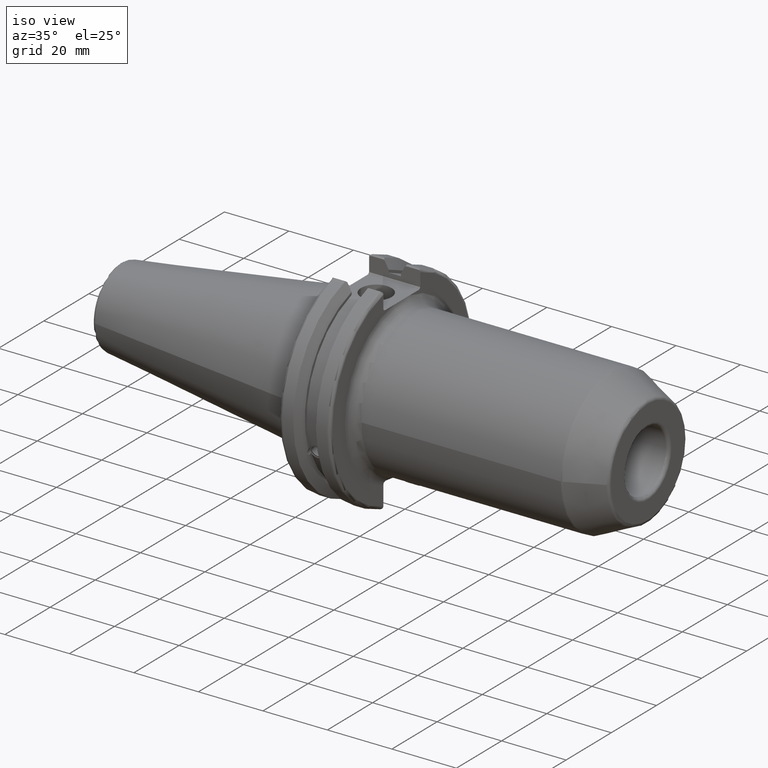
[diagram: clean part render]
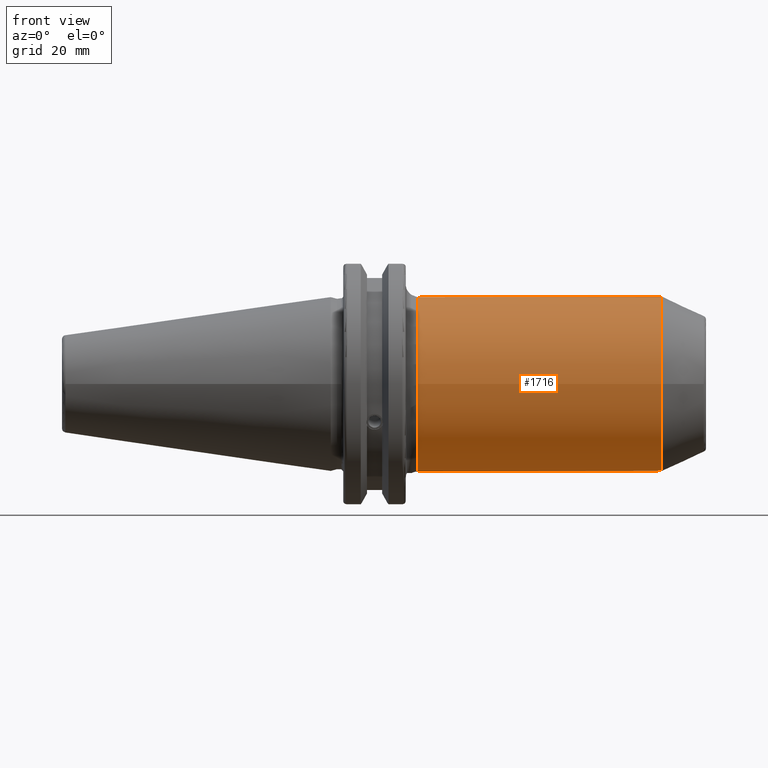
[diagram: tour spotlight — one face highlighted and labeled with its STEP entity id]
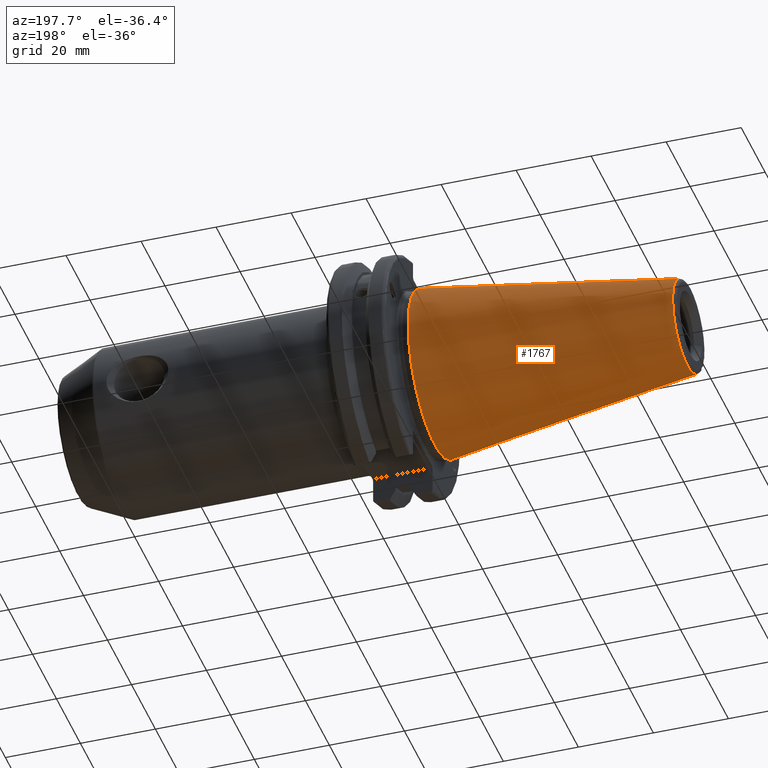
[diagram: tour spotlight — one face highlighted and labeled with its STEP entity id]
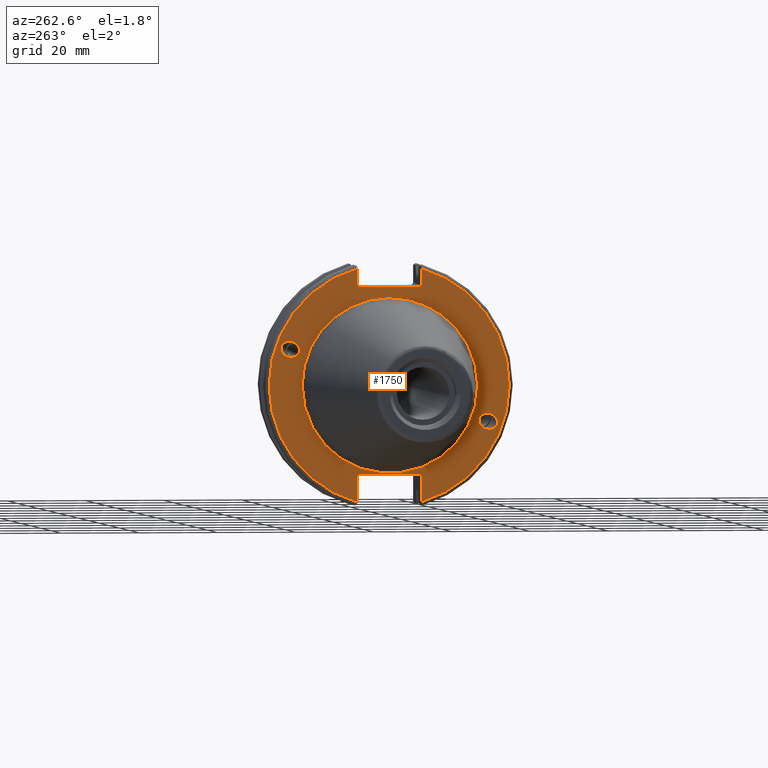
[diagram: tour spotlight — one face highlighted and labeled with its STEP entity id]
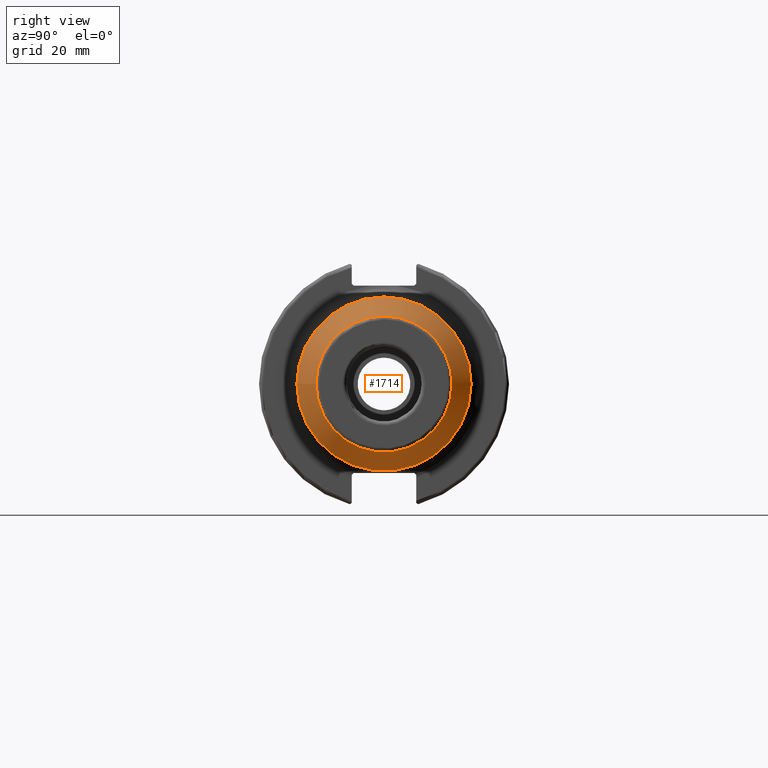
[diagram: tour spotlight — one face highlighted and labeled with its STEP entity id]
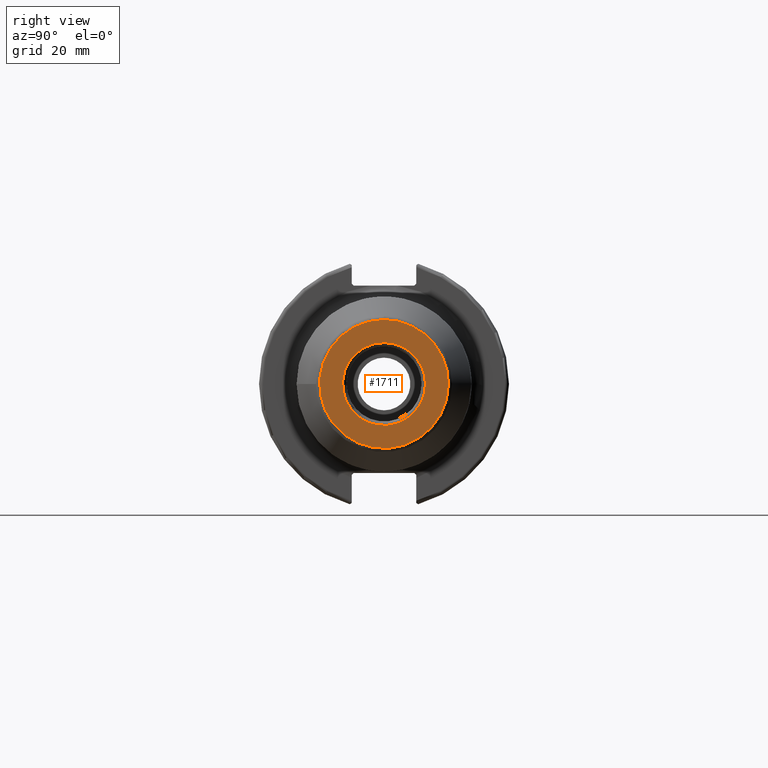
[diagram: tour spotlight — one face highlighted and labeled with its STEP entity id]
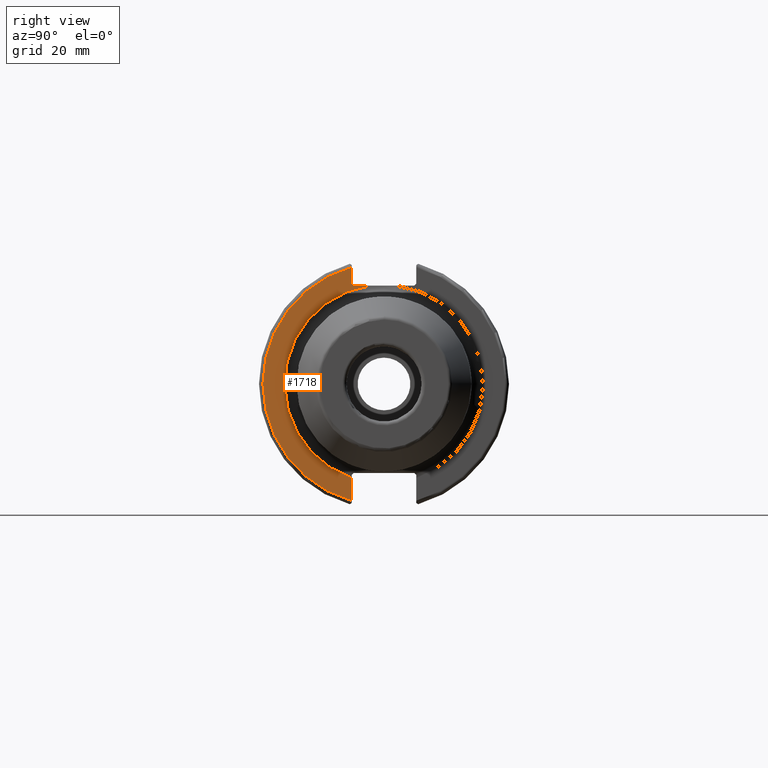
[diagram: tour spotlight — one face highlighted and labeled with its STEP entity id]
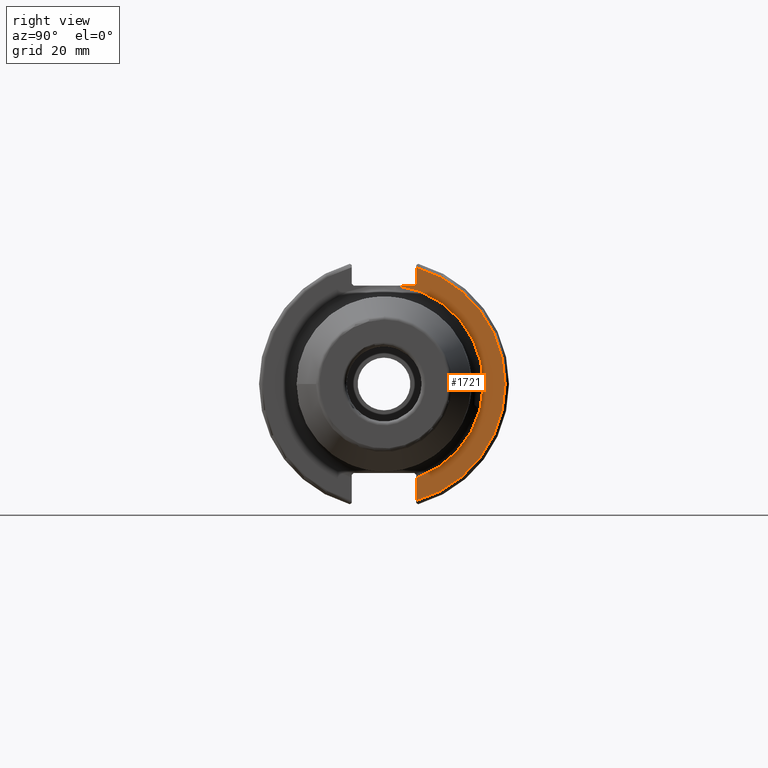
[diagram: tour spotlight — one face highlighted and labeled with its STEP entity id]
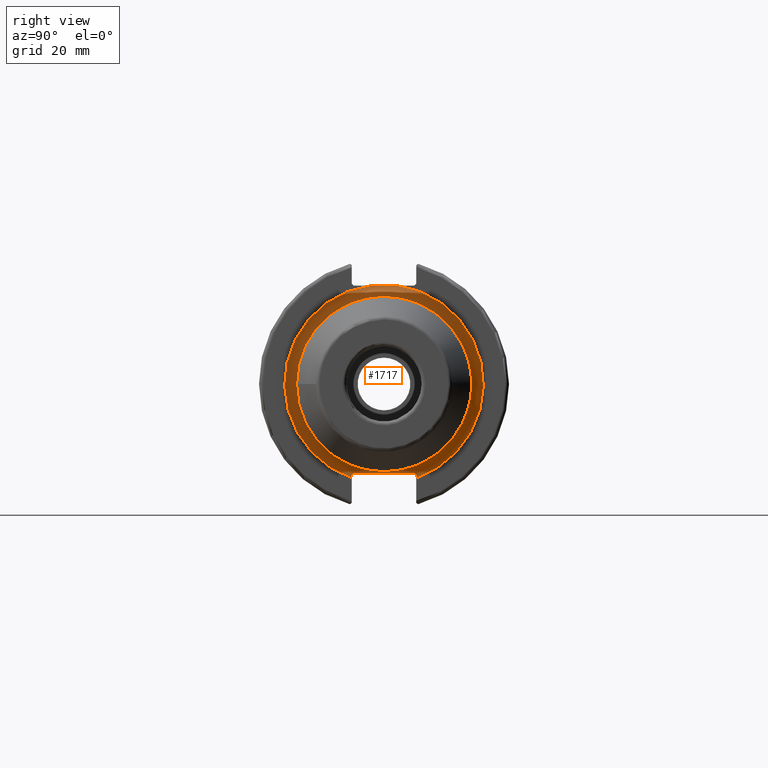
[diagram: tour spotlight — one face highlighted and labeled with its STEP entity id]
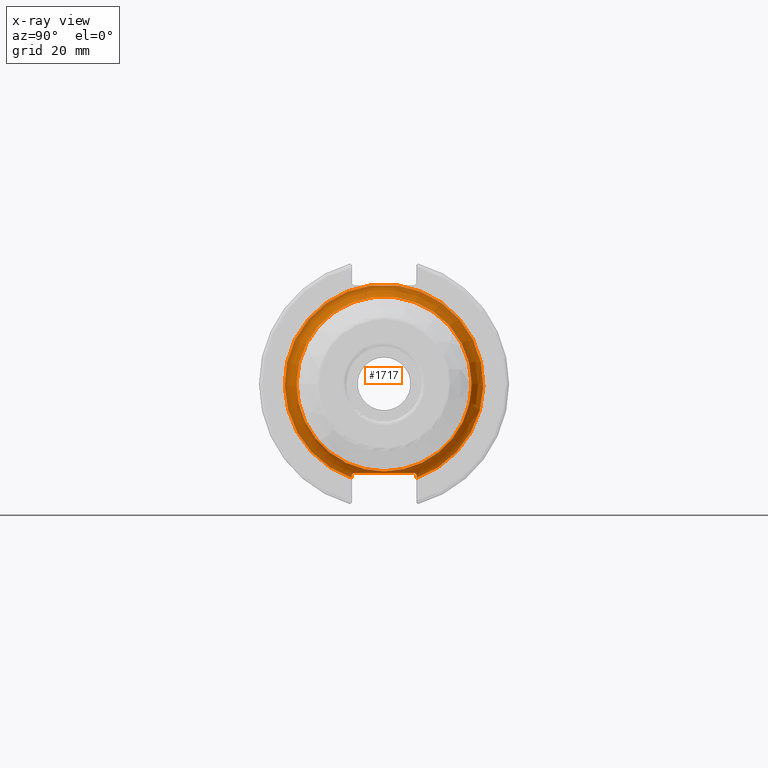
[diagram: x-ray of the same camera — body ghosted, this tour face saturated]
A machine part: a face-by-face anatomy tour. The part has 89 B-rep faces; the first image is the clean iso view, then the 8 largest visible faces are spotlighted one at a time (largest first), each with its STEP entity span.

Face 1 — front view, entity #1716. In plain terms, the highlighted cylindrical surface (bore or boss wall) has radius 22.225 mm, axis along (1, 0, 0).
Definition (entity closure, byte-faithful):
#74=FACE_BOUND('',#230,.T.);
#137=FACE_OUTER_BOUND('',#229,.T.);
#229=EDGE_LOOP('',(#1186,#1187,#1188,#1189,#1190,#1191,#1192,#1193));
#230=EDGE_LOOP('',(#1194,#1195));
#326=B_SPLINE_CURVE_WITH_KNOTS('',3,(#2624,#2625,#2626,#2627,#2628,#2629,
#2630,#2631,#2632,#2633,#2634,#2635,#2636,#2637,#2638,#2639,#2640,#2641,
#2642,#2643,#2644,#2645,#2646,#2647,#2648,#2649),.UNSPECIFIED.,.F.,.F.,
(4,2,2,2,2,2,2,2,2,2,2,2,4),(0.,0.28570665169372,0.571413303387441,0.868206131903912,
1.16499896042038,1.46179178893685,1.75858461745333,2.04429126914705,2.32999792084077,
2.61570457253449,2.90141122422821,3.19820405274468,3.49499688126115),
 .UNSPECIFIED.);
#327=B_SPLINE_CURVE_WITH_KNOTS('',3,(#2650,#2651,#2652,#2653,#2654,#2655,
#2656,#2657,#2658,#2659),.UNSPECIFIED.,.F.,.F.,(4,2,2,2,4),(3.49499688126115,
3.79178970977762,4.08858253829409,4.37428918998781,4.65999584168153),
 .UNSPECIFIED.);
#369=LINE('',#2709,#459);
#459=VECTOR('',#2110,22.225);
#567=CIRCLE('',#1847,22.225);
#568=CIRCLE('',#1848,22.225);
#569=CIRCLE('',#1849,22.225);
#570=CIRCLE('',#1851,22.225);
#571=CIRCLE('',#1852,22.225);
#572=CIRCLE('',#1853,22.225);
#662=VERTEX_POINT('',#2621);
#663=VERTEX_POINT('',#2623);
#679=VERTEX_POINT('',#2700);
#680=VERTEX_POINT('',#2702);
#681=VERTEX_POINT('',#2704);
#682=VERTEX_POINT('',#2708);
#683=VERTEX_POINT('',#2710);
#684=VERTEX_POINT('',#2712);
#859=EDGE_CURVE('',#663,#662,#326,.T.);
#860=EDGE_CURVE('',#662,#663,#327,.T.);
#881=EDGE_CURVE('',#679,#680,#567,.T.);
#882=EDGE_CURVE('',#680,#681,#568,.T.);
#883=EDGE_CURVE('',#681,#679,#569,.T.);
#884=EDGE_CURVE('',#680,#682,#369,.T.);
#885=EDGE_CURVE('',#683,#682,#570,.T.);
#886=EDGE_CURVE('',#684,#683,#571,.T.);
#887=EDGE_CURVE('',#682,#684,#572,.T.);
#1186=ORIENTED_EDGE('',*,*,#883,.F.);
#1187=ORIENTED_EDGE('',*,*,#882,.F.);
#1188=ORIENTED_EDGE('',*,*,#884,.T.);
#1189=ORIENTED_EDGE('',*,*,#885,.F.);
#1190=ORIENTED_EDGE('',*,*,#886,.F.);
#1191=ORIENTED_EDGE('',*,*,#887,.F.);
#1192=ORIENTED_EDGE('',*,*,#884,.F.);
#1193=ORIENTED_EDGE('',*,*,#881,.F.);
#1194=ORIENTED_EDGE('',*,*,#859,.T.);
#1195=ORIENTED_EDGE('',*,*,#860,.T.);
#1681=CYLINDRICAL_SURFACE('',#1850,22.225);
#1716=ADVANCED_FACE('',(#137,#74),#1681,.T.);
#1847=AXIS2_PLACEMENT_3D('',#2703,#2102,#2103);
#1848=AXIS2_PLACEMENT_3D('',#2705,#2104,#2105);
#1849=AXIS2_PLACEMENT_3D('',#2706,#2106,#2107);
#1850=AXIS2_PLACEMENT_3D('',#2707,#2108,#2109);
#1851=AXIS2_PLACEMENT_3D('',#2711,#2111,#2112);
#1852=AXIS2_PLACEMENT_3D('',#2713,#2113,#2114);
#1853=AXIS2_PLACEMENT_3D('',#2714,#2115,#2116);
#2102=DIRECTION('center_axis',(1.,0.,0.));
#2103=DIRECTION('ref_axis',(0.,-1.,1.83697019872103E-16));
#2104=DIRECTION('center_axis',(1.,0.,0.));
#2105=DIRECTION('ref_axis',(0.,-1.,1.83697019872103E-16));
#2106=DIRECTION('center_axis',(1.,0.,0.));
#2107=DIRECTION('ref_axis',(0.,-1.,1.83697019872103E-16));
#2108=DIRECTION('center_axis',(1.,0.,0.));
#2109=DIRECTION('ref_axis',(0.,1.,0.));
#2110=DIRECTION('',(-1.,0.,0.));
#2111=DIRECTION('center_axis',(-1.,0.,0.));
#2112=DIRECTION('ref_axis',(0.,-1.,-1.22464679914735E-16));
#2113=DIRECTION('center_axis',(-1.,0.,0.));
#2114=DIRECTION('ref_axis',(0.,-1.,-1.22464679914735E-16));
#2115=DIRECTION('center_axis',(-1.,0.,0.));
#2116=DIRECTION('ref_axis',(0.,-1.,-1.22464679914735E-16));
#2621=CARTESIAN_POINT('',(63.95,22.225,1.01033360929656E-15));
#2623=CARTESIAN_POINT('',(72.2,21.0640818382873,-7.08908183828728));
#2624=CARTESIAN_POINT('Ctrl Pts',(72.2,21.0640818382873,-7.08908183828728));
#2625=CARTESIAN_POINT('Ctrl Pts',(73.1523555056457,21.0640818382873,-7.08908183828728));
#2626=CARTESIAN_POINT('Ctrl Pts',(74.1774472068294,21.1172822160691,-6.93706939600735));
#2627=CARTESIAN_POINT('Ctrl Pts',(76.105103114522,21.3165094684298,-6.29833098617762));
#2628=CARTESIAN_POINT('Ctrl Pts',(77.0079683762494,21.4600099475821,-5.81172811466357));
#2629=CARTESIAN_POINT('Ctrl Pts',(78.5191535780537,21.7469359800464,-4.6267996553044));
#2630=CARTESIAN_POINT('Ctrl Pts',(79.2252339768787,21.9114714688491,-3.83129789219669));
#2631=CARTESIAN_POINT('Ctrl Pts',(80.1915599293766,22.1526075235609,-2.01331009728329));
#2632=CARTESIAN_POINT('Ctrl Pts',(80.45,22.225,-0.989309428388238));
#2633=CARTESIAN_POINT('Ctrl Pts',(80.45,22.225,0.989309428388238));
#2634=CARTESIAN_POINT('Ctrl Pts',(80.1915599293766,22.1526075235609,2.01331009728329));
#2635=CARTESIAN_POINT('Ctrl Pts',(79.2252339768787,21.9114714688491,3.83129789219669));
#2636=CARTESIAN_POINT('Ctrl Pts',(78.5191535780537,21.7469359800464,4.6267996553044));
#2637=CARTESIAN_POINT('Ctrl Pts',(77.0079683762494,21.4600099475821,5.81172811466357));
#2638=CARTESIAN_POINT('Ctrl Pts',(76.105103114522,21.3165094684298,6.29833098617761));
#2639=CARTESIAN_POINT('Ctrl Pts',(74.1774472068294,21.1172822160691,6.93706939600735));
#2640=CARTESIAN_POINT('Ctrl Pts',(73.1523555056457,21.0640818382873,7.08908183828729));
#2641=CARTESIAN_POINT('Ctrl Pts',(71.2476444943543,21.0640818382873,7.08908183828729));
#2642=CARTESIAN_POINT('Ctrl Pts',(70.2225527931706,21.1172822160691,6.93706939600735));
#2643=CARTESIAN_POINT('Ctrl Pts',(68.294896885478,21.3165094684298,6.29833098617762));
#2644=CARTESIAN_POINT('Ctrl Pts',(67.3920316237506,21.4600099475821,5.81172811466357));
#2645=CARTESIAN_POINT('Ctrl Pts',(65.8808464219463,21.7469359800464,4.6267996553044));
#2646=CARTESIAN_POINT('Ctrl Pts',(65.1747660231213,21.9114714688491,3.83129789219669));
#2647=CARTESIAN_POINT('Ctrl Pts',(64.2084400706234,22.1526075235609,2.01331009728329));
#2648=CARTESIAN_POINT('Ctrl Pts',(63.95,22.225,0.98930942838824));
#2649=CARTESIAN_POINT('Ctrl Pts',(63.95,22.225,1.66533453693773E-15));
#2650=CARTESIAN_POINT('Ctrl Pts',(63.95,22.225,1.11022302462516E-15));
#2651=CARTESIAN_POINT('Ctrl Pts',(63.95,22.225,-0.989309428388237));
#2652=CARTESIAN_POINT('Ctrl Pts',(64.2084400706234,22.1526075235609,-2.01331009728329));
#2653=CARTESIAN_POINT('Ctrl Pts',(65.1747660231213,21.9114714688491,-3.83129789219669));
#2654=CARTESIAN_POINT('Ctrl Pts',(65.8808464219463,21.7469359800464,-4.6267996553044));
#2655=CARTESIAN_POINT('Ctrl Pts',(67.3920316237506,21.4600099475821,-5.81172811466357));
#2656=CARTESIAN_POINT('Ctrl Pts',(68.294896885478,21.3165094684298,-6.29833098617762));
#2657=CARTESIAN_POINT('Ctrl Pts',(70.2225527931706,21.1172822160691,-6.93706939600735));
#2658=CARTESIAN_POINT('Ctrl Pts',(71.2476444943543,21.0640818382873,-7.08908183828728));
#2659=CARTESIAN_POINT('Ctrl Pts',(72.2,21.0640818382873,-7.08908183828728));
#2700=CARTESIAN_POINT('',(83.8732566776946,-2.72177751110499E-15,22.225));
#2702=CARTESIAN_POINT('',(83.8732566776946,-22.225,-2.72177751110499E-15));
#2703=CARTESIAN_POINT('Origin',(83.8732566776946,0.,0.));
#2704=CARTESIAN_POINT('',(83.8732566776946,22.225,-1.3608887555525E-15));
#2705=CARTESIAN_POINT('Origin',(83.8732566776946,0.,0.));
#2706=CARTESIAN_POINT('Origin',(83.8732566776946,0.,0.));
#2707=CARTESIAN_POINT('Origin',(51.5724756701688,0.,0.));
#2708=CARTESIAN_POINT('',(22.05,-22.225,-2.72177751110499E-15));
#2709=CARTESIAN_POINT('',(51.5724756701688,-22.225,-2.72177751110499E-15));
#2710=CARTESIAN_POINT('',(22.05,-2.72177751110499E-15,-22.225));
#2711=CARTESIAN_POINT('Origin',(22.05,0.,0.));
#2712=CARTESIAN_POINT('',(22.05,22.225,0.));
#2713=CARTESIAN_POINT('Origin',(22.05,0.,0.));
#2714=CARTESIAN_POINT('Origin',(22.05,0.,0.));

Face 2 — auxiliary view, entity #1767. In plain terms, the highlighted conical surface has half-angle 8.297 deg.
Definition (entity closure, byte-faithful):
#65=CONICAL_SURFACE('',#1988,17.2484375,0.144812498238939);
#188=FACE_OUTER_BOUND('',#293,.T.);
#293=EDGE_LOOP('',(#1531,#1532,#1533,#1534,#1535,#1536,#1537));
#435=LINE('',#3459,#525);
#525=VECTOR('',#2456,17.2484375);
#631=CIRCLE('',#1979,12.3966635780937);
#632=CIRCLE('',#1980,12.3966635780937);
#636=CIRCLE('',#1984,12.3966635780937);
#639=CIRCLE('',#1989,22.225);
#640=CIRCLE('',#1990,22.225);
#828=VERTEX_POINT('',#3438);
#829=VERTEX_POINT('',#3439);
#830=VERTEX_POINT('',#3441);
#835=VERTEX_POINT('',#3455);
#836=VERTEX_POINT('',#3456);
#1080=EDGE_CURVE('',#828,#829,#631,.T.);
#1081=EDGE_CURVE('',#829,#830,#632,.T.);
#1085=EDGE_CURVE('',#830,#828,#636,.T.);
#1088=EDGE_CURVE('',#835,#836,#639,.T.);
#1089=EDGE_CURVE('',#836,#835,#640,.T.);
#1090=EDGE_CURVE('',#836,#829,#435,.T.);
#1531=ORIENTED_EDGE('',*,*,#1088,.F.);
#1532=ORIENTED_EDGE('',*,*,#1089,.F.);
#1533=ORIENTED_EDGE('',*,*,#1090,.T.);
#1534=ORIENTED_EDGE('',*,*,#1080,.F.);
#1535=ORIENTED_EDGE('',*,*,#1085,.F.);
#1536=ORIENTED_EDGE('',*,*,#1081,.F.);
#1537=ORIENTED_EDGE('',*,*,#1090,.F.);
#1767=ADVANCED_FACE('',(#188),#65,.T.);
#1979=AXIS2_PLACEMENT_3D('',#3440,#2432,#2433);
#1980=AXIS2_PLACEMENT_3D('',#3442,#2434,#2435);
#1984=AXIS2_PLACEMENT_3D('',#3448,#2442,#2443);
#1988=AXIS2_PLACEMENT_3D('',#3454,#2450,#2451);
#1989=AXIS2_PLACEMENT_3D('',#3457,#2452,#2453);
#1990=AXIS2_PLACEMENT_3D('',#3458,#2454,#2455);
#2432=DIRECTION('center_axis',(-1.,0.,0.));
#2433=DIRECTION('ref_axis',(0.,-1.,3.06161699786838E-17));
#2434=DIRECTION('center_axis',(-1.,0.,0.));
#2435=DIRECTION('ref_axis',(0.,-1.,3.06161699786838E-17));
#2442=DIRECTION('center_axis',(-1.,0.,0.));
#2443=DIRECTION('ref_axis',(0.,-1.,3.06161699786838E-17));
#2450=DIRECTION('center_axis',(1.,0.,0.));
#2451=DIRECTION('ref_axis',(0.,1.,0.));
#2452=DIRECTION('center_axis',(1.,0.,0.));
#2453=DIRECTION('ref_axis',(0.,0.,-1.));
#2454=DIRECTION('center_axis',(1.,0.,0.));
#2455=DIRECTION('ref_axis',(0.,0.,-1.));
#2456=DIRECTION('',(-0.989532981063282,0.144306893071729,1.76724974695192E-17));
#3438=CARTESIAN_POINT('',(-67.3943068930717,12.3966635780937,-3.79538359275475E-15));
#3439=CARTESIAN_POINT('',(-67.3943068930718,-12.3966635780937,-1.5181534371019E-15));
#3440=CARTESIAN_POINT('Origin',(-67.3943068930717,0.,-1.89769179637738E-15));
#3441=CARTESIAN_POINT('',(-67.3943068930717,-1.5181534371019E-15,12.3966635780937));
#3442=CARTESIAN_POINT('Origin',(-67.3943068930717,0.,-1.89769179637738E-15));
#3448=CARTESIAN_POINT('Origin',(-67.3943068930717,0.,-1.89769179637738E-15));
#3454=CARTESIAN_POINT('Origin',(-34.125,0.,0.));
#3455=CARTESIAN_POINT('',(0.,22.225,0.));
#3456=CARTESIAN_POINT('',(0.,-22.225,-2.72177751110499E-15));
#3457=CARTESIAN_POINT('Origin',(0.,0.,0.));
#3458=CARTESIAN_POINT('Origin',(0.,0.,0.));
#3459=CARTESIAN_POINT('',(-34.125,-17.2484375,-2.11232437746682E-15));

Face 3 — auxiliary view, entity #1750. In plain terms, the highlighted planar face has unit normal (-1, 0, 0).
Definition (entity closure, byte-faithful):
#39=ELLIPSE('',#1895,2.44154917752291,2.);
#48=ELLIPSE('',#1943,2.44154917752291,2.);
#82=FACE_BOUND('',#272,.T.);
#83=FACE_BOUND('',#273,.T.);
#84=FACE_BOUND('',#274,.T.);
#102=PLANE('',#1954);
#171=FACE_OUTER_BOUND('',#271,.T.);
#271=EDGE_LOOP('',(#1412,#1413,#1414,#1415,#1416,#1417,#1418,#1419,#1420,
#1421,#1422,#1423));
#272=EDGE_LOOP('',(#1424));
#273=EDGE_LOOP('',(#1425));
#274=EDGE_LOOP('',(#1426,#1427));
#408=LINE('',#3222,#498);
#409=LINE('',#3224,#499);
#410=LINE('',#3226,#500);
#411=LINE('',#3228,#501);
#412=LINE('',#3230,#502);
#413=LINE('',#3234,#503);
#414=LINE('',#3236,#504);
#415=LINE('',#3238,#505);
#416=LINE('',#3240,#506);
#417=LINE('',#3241,#507);
#498=VECTOR('',#2359,10.);
#499=VECTOR('',#2360,10.);
#500=VECTOR('',#2361,10.);
#501=VECTOR('',#2362,10.);
#502=VECTOR('',#2363,10.);
#503=VECTOR('',#2366,10.);
#504=VECTOR('',#2367,10.);
#505=VECTOR('',#2368,10.);
#506=VECTOR('',#2369,10.);
#507=VECTOR('',#2370,10.);
#618=CIRCLE('',#1950,22.3);
#619=CIRCLE('',#1951,22.3);
#622=CIRCLE('',#1955,30.75);
#623=CIRCLE('',#1956,30.75);
#734=VERTEX_POINT('',#2965);
#781=VERTEX_POINT('',#3196);
#786=VERTEX_POINT('',#3209);
#787=VERTEX_POINT('',#3211);
#789=VERTEX_POINT('',#3218);
#790=VERTEX_POINT('',#3219);
#791=VERTEX_POINT('',#3221);
#792=VERTEX_POINT('',#3223);
#793=VERTEX_POINT('',#3225);
#794=VERTEX_POINT('',#3227);
#795=VERTEX_POINT('',#3229);
#796=VERTEX_POINT('',#3231);
#797=VERTEX_POINT('',#3233);
#798=VERTEX_POINT('',#3235);
#799=VERTEX_POINT('',#3237);
#800=VERTEX_POINT('',#3239);
#949=EDGE_CURVE('',#734,#734,#39,.T.);
#1012=EDGE_CURVE('',#781,#781,#48,.T.);
#1018=EDGE_CURVE('',#786,#787,#618,.T.);
#1019=EDGE_CURVE('',#787,#786,#619,.T.);
#1022=EDGE_CURVE('',#789,#790,#622,.T.);
#1023=EDGE_CURVE('',#789,#791,#408,.T.);
#1024=EDGE_CURVE('',#792,#791,#409,.T.);
#1025=EDGE_CURVE('',#792,#793,#410,.T.);
#1026=EDGE_CURVE('',#794,#793,#411,.T.);
#1027=EDGE_CURVE('',#794,#795,#412,.T.);
#1028=EDGE_CURVE('',#796,#795,#623,.T.);
#1029=EDGE_CURVE('',#796,#797,#413,.T.);
#1030=EDGE_CURVE('',#798,#797,#414,.T.);
#1031=EDGE_CURVE('',#798,#799,#415,.T.);
#1032=EDGE_CURVE('',#800,#799,#416,.T.);
#1033=EDGE_CURVE('',#800,#790,#417,.T.);
#1412=ORIENTED_EDGE('',*,*,#1022,.F.);
#1413=ORIENTED_EDGE('',*,*,#1023,.T.);
#1414=ORIENTED_EDGE('',*,*,#1024,.F.);
#1415=ORIENTED_EDGE('',*,*,#1025,.T.);
#1416=ORIENTED_EDGE('',*,*,#1026,.F.);
#1417=ORIENTED_EDGE('',*,*,#1027,.T.);
#1418=ORIENTED_EDGE('',*,*,#1028,.F.);
#1419=ORIENTED_EDGE('',*,*,#1029,.T.);
#1420=ORIENTED_EDGE('',*,*,#1030,.F.);
#1421=ORIENTED_EDGE('',*,*,#1031,.T.);
#1422=ORIENTED_EDGE('',*,*,#1032,.F.);
#1423=ORIENTED_EDGE('',*,*,#1033,.T.);
#1424=ORIENTED_EDGE('',*,*,#949,.T.);
#1425=ORIENTED_EDGE('',*,*,#1012,.T.);
#1426=ORIENTED_EDGE('',*,*,#1019,.F.);
#1427=ORIENTED_EDGE('',*,*,#1018,.F.);
#1750=ADVANCED_FACE('',(#171,#82,#83,#84),#102,.T.);
#1895=AXIS2_PLACEMENT_3D('',#2967,#2219,#2220);
#1943=AXIS2_PLACEMENT_3D('',#3198,#2332,#2333);
#1950=AXIS2_PLACEMENT_3D('',#3212,#2347,#2348);
#1951=AXIS2_PLACEMENT_3D('',#3213,#2349,#2350);
#1954=AXIS2_PLACEMENT_3D('',#3217,#2355,#2356);
#1955=AXIS2_PLACEMENT_3D('',#3220,#2357,#2358);
#1956=AXIS2_PLACEMENT_3D('',#3232,#2364,#2365);
#2219=DIRECTION('center_axis',(1.,0.,0.));
#2220=DIRECTION('ref_axis',(0.,-0.939692620785912,-0.34202014332566));
#2332=DIRECTION('center_axis',(1.,0.,0.));
#2333=DIRECTION('ref_axis',(0.,0.939692620785912,0.34202014332566));
#2347=DIRECTION('center_axis',(-1.,0.,0.));
#2348=DIRECTION('ref_axis',(0.,-1.,1.83697019872103E-16));
#2349=DIRECTION('center_axis',(-1.,0.,0.));
#2350=DIRECTION('ref_axis',(0.,-1.,1.83697019872103E-16));
#2355=DIRECTION('center_axis',(-1.,0.,0.));
#2356=DIRECTION('ref_axis',(0.,0.,1.));
#2357=DIRECTION('center_axis',(1.,0.,0.));
#2358=DIRECTION('ref_axis',(0.,-1.,1.60812264967664E-16));
#2359=DIRECTION('',(0.,0.,-1.));
#2360=DIRECTION('',(0.,-0.70710678118655,0.707106781186545));
#2361=DIRECTION('',(0.,1.,0.));
#2362=DIRECTION('',(0.,-0.707106781186549,-0.707106781186546));
#2363=DIRECTION('',(0.,0.,1.));
#2364=DIRECTION('center_axis',(1.,0.,0.));
#2365=DIRECTION('ref_axis',(0.,1.,1.60812264967664E-16));
#2366=DIRECTION('',(0.,0.,1.));
#2367=DIRECTION('',(0.,0.707106781186549,-0.707106781186546));
#2368=DIRECTION('',(0.,-1.,0.));
#2369=DIRECTION('',(0.,0.707106781186549,0.707106781186546));
#2370=DIRECTION('',(0.,0.,-1.));
#2965=CARTESIAN_POINT('',(3.175,-23.0773950158153,-8.39948487016003));
#2967=CARTESIAN_POINT('Origin',(3.175,-25.3717007612195,-9.23454386979306));
#3196=CARTESIAN_POINT('',(3.175,23.0773950158153,8.39948487016003));
#3198=CARTESIAN_POINT('Origin',(3.175,25.3717007612195,9.23454386979306));
#3209=CARTESIAN_POINT('',(3.175,-2.7309623620986E-15,22.3));
#3211=CARTESIAN_POINT('',(3.175,22.3,-6.8274059052465E-15));
#3212=CARTESIAN_POINT('Origin',(3.175,0.,0.));
#3213=CARTESIAN_POINT('Origin',(3.175,0.,0.));
#3217=CARTESIAN_POINT('Origin',(3.175,31.75,0.));
#3218=CARTESIAN_POINT('',(3.175,-8.18999999999999,29.6392712461019));
#3219=CARTESIAN_POINT('',(3.175,-8.19,-29.6392712461019));
#3220=CARTESIAN_POINT('Origin',(3.175,0.,0.));
#3221=CARTESIAN_POINT('',(3.175,-8.18999999999999,25.5));
#3222=CARTESIAN_POINT('',(3.175,-8.18999999999999,12.5));
#3223=CARTESIAN_POINT('',(3.175,-7.68999999999999,25.));
#3224=CARTESIAN_POINT('',(3.175,8.29500000000007,9.01500000000004));
#3225=CARTESIAN_POINT('',(3.175,7.69,25.));
#3226=CARTESIAN_POINT('',(3.175,15.875,25.));
#3227=CARTESIAN_POINT('',(3.175,8.19,25.5));
#3228=CARTESIAN_POINT('',(3.175,7.58000000000002,24.89));
#3229=CARTESIAN_POINT('',(3.175,8.19,29.6392712461019));
#3230=CARTESIAN_POINT('',(3.175,8.19,12.5));
#3231=CARTESIAN_POINT('',(3.175,8.18999999999999,-29.6392712461019));
#3232=CARTESIAN_POINT('Origin',(3.175,0.,0.));
#3233=CARTESIAN_POINT('',(3.175,8.18999999999999,-23.1));
#3234=CARTESIAN_POINT('',(3.175,8.18999999999999,-11.3));
#3235=CARTESIAN_POINT('',(3.175,7.69,-22.6));
#3236=CARTESIAN_POINT('',(3.175,8.18000000000002,-23.09));
#3237=CARTESIAN_POINT('',(3.175,-7.69,-22.6));
#3238=CARTESIAN_POINT('',(3.175,15.875,-22.6));
#3239=CARTESIAN_POINT('',(3.175,-8.19,-23.1));
#3240=CARTESIAN_POINT('',(3.175,7.69500000000004,-7.21500000000002));
#3241=CARTESIAN_POINT('',(3.175,-8.19,-11.3));

Face 4 — right view, entity #1714. In plain terms, the highlighted conical surface has half-angle 25 deg.
Definition (entity closure, byte-faithful):
#60=CONICAL_SURFACE('',#1841,19.6125,0.436332312998582);
#135=FACE_OUTER_BOUND('',#227,.T.);
#227=EDGE_LOOP('',(#1170,#1171,#1172,#1173,#1174,#1175,#1176,#1177));
#368=LINE('',#2693,#458);
#458=VECTOR('',#2091,19.6125);
#560=CIRCLE('',#1838,17.2692375262292);
#561=CIRCLE('',#1839,17.2692375262292);
#562=CIRCLE('',#1840,17.2692375262292);
#563=CIRCLE('',#1842,22.1313077870367);
#564=CIRCLE('',#1843,22.1313077870367);
#565=CIRCLE('',#1844,22.1313077870367);
#673=VERTEX_POINT('',#2684);
#674=VERTEX_POINT('',#2686);
#675=VERTEX_POINT('',#2688);
#676=VERTEX_POINT('',#2692);
#677=VERTEX_POINT('',#2694);
#678=VERTEX_POINT('',#2696);
#873=EDGE_CURVE('',#673,#674,#560,.T.);
#874=EDGE_CURVE('',#674,#675,#561,.T.);
#875=EDGE_CURVE('',#675,#673,#562,.T.);
#876=EDGE_CURVE('',#674,#676,#368,.T.);
#877=EDGE_CURVE('',#677,#676,#563,.T.);
#878=EDGE_CURVE('',#678,#677,#564,.T.);
#879=EDGE_CURVE('',#676,#678,#565,.T.);
#1170=ORIENTED_EDGE('',*,*,#875,.F.);
#1171=ORIENTED_EDGE('',*,*,#874,.F.);
#1172=ORIENTED_EDGE('',*,*,#876,.T.);
#1173=ORIENTED_EDGE('',*,*,#877,.F.);
#1174=ORIENTED_EDGE('',*,*,#878,.F.);
#1175=ORIENTED_EDGE('',*,*,#879,.F.);
#1176=ORIENTED_EDGE('',*,*,#876,.F.);
#1177=ORIENTED_EDGE('',*,*,#873,.F.);
#1714=ADVANCED_FACE('',(#135),#60,.T.);
#1838=AXIS2_PLACEMENT_3D('',#2687,#2083,#2084);
#1839=AXIS2_PLACEMENT_3D('',#2689,#2085,#2086);
#1840=AXIS2_PLACEMENT_3D('',#2690,#2087,#2088);
#1841=AXIS2_PLACEMENT_3D('',#2691,#2089,#2090);
#1842=AXIS2_PLACEMENT_3D('',#2695,#2092,#2093);
#1843=AXIS2_PLACEMENT_3D('',#2697,#2094,#2095);
#1844=AXIS2_PLACEMENT_3D('',#2698,#2096,#2097);
#2083=DIRECTION('center_axis',(1.,0.,0.));
#2084=DIRECTION('ref_axis',(0.,-1.,3.06161699786838E-17));
#2085=DIRECTION('center_axis',(1.,0.,0.));
#2086=DIRECTION('ref_axis',(0.,-1.,3.06161699786838E-17));
#2087=DIRECTION('center_axis',(1.,0.,0.));
#2088=DIRECTION('ref_axis',(0.,-1.,3.06161699786838E-17));
#2089=DIRECTION('center_axis',(-1.,0.,0.));
#2090=DIRECTION('ref_axis',(0.,1.,0.));
#2091=DIRECTION('',(-0.90630778703665,-0.422618261740699,-5.17558101501965E-17));
#2092=DIRECTION('center_axis',(-1.,0.,0.));
#2093=DIRECTION('ref_axis',(0.,-1.,3.06161699786838E-17));
#2094=DIRECTION('center_axis',(-1.,0.,0.));
#2095=DIRECTION('ref_axis',(0.,-1.,3.06161699786838E-17));
#2096=DIRECTION('center_axis',(-1.,0.,0.));
#2097=DIRECTION('ref_axis',(0.,-1.,3.06161699786838E-17));
#2684=CARTESIAN_POINT('',(94.7226182617407,-2.11487164602119E-15,17.2692375262292));
#2686=CARTESIAN_POINT('',(94.7226182617407,-17.2692375262292,-2.11487164602119E-15));
#2687=CARTESIAN_POINT('Origin',(94.7226182617407,0.,-2.64358955752649E-15));
#2688=CARTESIAN_POINT('',(94.7226182617407,17.2692375262292,-1.05743582301059E-15));
#2689=CARTESIAN_POINT('Origin',(94.7226182617407,0.,-2.64358955752649E-15));
#2690=CARTESIAN_POINT('Origin',(94.7226182617407,0.,-2.64358955752649E-15));
#2691=CARTESIAN_POINT('Origin',(89.6974756701688,0.,0.));
#2692=CARTESIAN_POINT('',(84.2958749394353,-22.1313077870367,-2.71030352423393E-15));
#2693=CARTESIAN_POINT('',(89.6974756701688,-19.6125,-2.40183853482775E-15));
#2694=CARTESIAN_POINT('',(84.2958749394353,22.1313077870367,-6.77575881058483E-15));
#2695=CARTESIAN_POINT('Origin',(84.2958749394353,0.,-3.38787940529242E-15));
#2696=CARTESIAN_POINT('',(84.2958749394353,-2.71030352423393E-15,22.1313077870367));
#2697=CARTESIAN_POINT('Origin',(84.2958749394353,0.,-3.38787940529242E-15));
#2698=CARTESIAN_POINT('Origin',(84.2958749394353,0.,-3.38787940529242E-15));

Face 5 — right view, entity #1711. In plain terms, the highlighted planar face has unit normal (1, 0, 0).
Definition (entity closure, byte-faithful):
#72=FACE_BOUND('',#223,.T.);
#90=PLANE('',#1830);
#132=FACE_OUTER_BOUND('',#222,.T.);
#222=EDGE_LOOP('',(#1150,#1151));
#223=EDGE_LOOP('',(#1152,#1153));
#552=CIRCLE('',#1827,10.525);
#553=CIRCLE('',#1828,10.525);
#555=CIRCLE('',#1831,16.3629297391925);
#556=CIRCLE('',#1832,16.3629297391925);
#667=VERTEX_POINT('',#2666);
#668=VERTEX_POINT('',#2668);
#669=VERTEX_POINT('',#2673);
#670=VERTEX_POINT('',#2674);
#864=EDGE_CURVE('',#667,#668,#552,.T.);
#865=EDGE_CURVE('',#668,#667,#553,.T.);
#867=EDGE_CURVE('',#669,#670,#555,.T.);
#868=EDGE_CURVE('',#670,#669,#556,.T.);
#1150=ORIENTED_EDGE('',*,*,#867,.F.);
#1151=ORIENTED_EDGE('',*,*,#868,.F.);
#1152=ORIENTED_EDGE('',*,*,#865,.F.);
#1153=ORIENTED_EDGE('',*,*,#864,.F.);
#1711=ADVANCED_FACE('',(#132,#72),#90,.T.);
#1827=AXIS2_PLACEMENT_3D('',#2669,#2060,#2061);
#1828=AXIS2_PLACEMENT_3D('',#2670,#2062,#2063);
#1830=AXIS2_PLACEMENT_3D('',#2672,#2066,#2067);
#1831=AXIS2_PLACEMENT_3D('',#2675,#2068,#2069);
#1832=AXIS2_PLACEMENT_3D('',#2676,#2070,#2071);
#2060=DIRECTION('center_axis',(1.,0.,0.));
#2061=DIRECTION('ref_axis',(0.,-1.,1.83697019872103E-16));
#2062=DIRECTION('center_axis',(1.,0.,0.));
#2063=DIRECTION('ref_axis',(0.,-1.,1.83697019872103E-16));
#2066=DIRECTION('center_axis',(1.,0.,0.));
#2067=DIRECTION('ref_axis',(0.,0.,-1.));
#2068=DIRECTION('center_axis',(-1.,0.,0.));
#2069=DIRECTION('ref_axis',(0.,-1.,1.83697019872103E-16));
#2070=DIRECTION('center_axis',(-1.,0.,0.));
#2071=DIRECTION('ref_axis',(0.,-1.,1.83697019872103E-16));
#2666=CARTESIAN_POINT('',(95.3,-1.28894075610259E-15,10.525));
#2668=CARTESIAN_POINT('',(95.3,10.525,-6.44470378051294E-16));
#2669=CARTESIAN_POINT('Origin',(95.3,0.,0.));
#2670=CARTESIAN_POINT('Origin',(95.3,0.,0.));
#2672=CARTESIAN_POINT('Origin',(95.3,9.525,0.));
#2673=CARTESIAN_POINT('',(95.3,16.3629297391925,-5.00970238244378E-15));
#2674=CARTESIAN_POINT('',(95.3,-2.00388095297751E-15,16.3629297391925));
#2675=CARTESIAN_POINT('Origin',(95.3,0.,0.));
#2676=CARTESIAN_POINT('Origin',(95.3,0.,0.));

Face 6 — right view, entity #1718. In plain terms, the highlighted planar face has unit normal (1, 0, 0).
Definition (entity closure, byte-faithful):
#91=PLANE('',#1858);
#139=FACE_OUTER_BOUND('',#232,.T.);
#232=EDGE_LOOP('',(#1210,#1211,#1212,#1213,#1214,#1215));
#370=LINE('',#2776,#460);
#371=LINE('',#2778,#461);
#372=LINE('',#2780,#462);
#373=LINE('',#2783,#463);
#460=VECTOR('',#2127,10.);
#461=VECTOR('',#2128,10.);
#462=VECTOR('',#2129,10.);
#463=VECTOR('',#2132,10.);
#575=CIRCLE('',#1857,25.225);
#576=CIRCLE('',#1859,30.75);
#690=VERTEX_POINT('',#2741);
#691=VERTEX_POINT('',#2752);
#694=VERTEX_POINT('',#2775);
#695=VERTEX_POINT('',#2777);
#696=VERTEX_POINT('',#2779);
#697=VERTEX_POINT('',#2781);
#894=EDGE_CURVE('',#690,#691,#575,.T.);
#898=EDGE_CURVE('',#690,#694,#370,.T.);
#899=EDGE_CURVE('',#695,#694,#371,.T.);
#900=EDGE_CURVE('',#695,#696,#372,.T.);
#901=EDGE_CURVE('',#697,#696,#576,.T.);
#902=EDGE_CURVE('',#697,#691,#373,.T.);
#1210=ORIENTED_EDGE('',*,*,#894,.F.);
#1211=ORIENTED_EDGE('',*,*,#898,.T.);
#1212=ORIENTED_EDGE('',*,*,#899,.F.);
#1213=ORIENTED_EDGE('',*,*,#900,.T.);
#1214=ORIENTED_EDGE('',*,*,#901,.F.);
#1215=ORIENTED_EDGE('',*,*,#902,.T.);
#1718=ADVANCED_FACE('',(#139),#91,.T.);
#1857=AXIS2_PLACEMENT_3D('',#2753,#2123,#2124);
#1858=AXIS2_PLACEMENT_3D('',#2774,#2125,#2126);
#1859=AXIS2_PLACEMENT_3D('',#2782,#2130,#2131);
#2123=DIRECTION('center_axis',(1.,0.,0.));
#2124=DIRECTION('ref_axis',(0.,-1.,-1.22464679914735E-16));
#2125=DIRECTION('center_axis',(1.,0.,0.));
#2126=DIRECTION('ref_axis',(0.,0.,-1.));
#2127=DIRECTION('',(0.,-1.,0.));
#2128=DIRECTION('',(0.,0.70710678118655,-0.707106781186545));
#2129=DIRECTION('',(0.,0.,1.));
#2130=DIRECTION('center_axis',(-1.,0.,0.));
#2131=DIRECTION('ref_axis',(0.,-1.,1.60812264967664E-16));
#2132=DIRECTION('',(0.,0.,1.));
#2741=CARTESIAN_POINT('',(19.05,-3.36164022465224,25.));
#2752=CARTESIAN_POINT('',(19.05,-8.19,-23.858426708398));
#2753=CARTESIAN_POINT('Origin',(19.05,0.,0.));
#2774=CARTESIAN_POINT('Origin',(19.05,0.,0.));
#2775=CARTESIAN_POINT('',(19.05,-7.69,25.));
#2776=CARTESIAN_POINT('',(19.05,0.,25.));
#2777=CARTESIAN_POINT('',(19.05,-8.19,25.5));
#2778=CARTESIAN_POINT('',(19.05,0.357500000000014,16.9525));
#2779=CARTESIAN_POINT('',(19.05,-8.19,29.6392712461019));
#2780=CARTESIAN_POINT('',(19.05,-8.19,12.5));
#2781=CARTESIAN_POINT('',(19.05,-8.19,-29.6392712461019));
#2782=CARTESIAN_POINT('Origin',(19.05,0.,0.));
#2783=CARTESIAN_POINT('',(19.05,-8.19,-11.3));

Face 7 — right view, entity #1721. In plain terms, the highlighted planar face has unit normal (1, 0, 0).
Definition (entity closure, byte-faithful):
#93=PLANE('',#1866);
#142=FACE_OUTER_BOUND('',#236,.T.);
#236=EDGE_LOOP('',(#1226,#1227,#1228,#1229,#1230,#1231));
#375=LINE('',#2797,#465);
#376=LINE('',#2801,#466);
#377=LINE('',#2803,#467);
#378=LINE('',#2804,#468);
#465=VECTOR('',#2148,10.);
#466=VECTOR('',#2151,10.);
#467=VECTOR('',#2152,10.);
#468=VECTOR('',#2153,10.);
#574=CIRCLE('',#1856,25.225);
#581=CIRCLE('',#1867,30.75);
#688=VERTEX_POINT('',#2734);
#689=VERTEX_POINT('',#2739);
#702=VERTEX_POINT('',#2796);
#703=VERTEX_POINT('',#2798);
#704=VERTEX_POINT('',#2800);
#705=VERTEX_POINT('',#2802);
#892=EDGE_CURVE('',#688,#689,#574,.T.);
#908=EDGE_CURVE('',#688,#702,#375,.T.);
#909=EDGE_CURVE('',#703,#702,#581,.T.);
#910=EDGE_CURVE('',#703,#704,#376,.T.);
#911=EDGE_CURVE('',#705,#704,#377,.T.);
#912=EDGE_CURVE('',#705,#689,#378,.T.);
#1226=ORIENTED_EDGE('',*,*,#892,.F.);
#1227=ORIENTED_EDGE('',*,*,#908,.T.);
#1228=ORIENTED_EDGE('',*,*,#909,.F.);
#1229=ORIENTED_EDGE('',*,*,#910,.T.);
#1230=ORIENTED_EDGE('',*,*,#911,.F.);
#1231=ORIENTED_EDGE('',*,*,#912,.T.);
#1721=ADVANCED_FACE('',(#142),#93,.T.);
#1856=AXIS2_PLACEMENT_3D('',#2740,#2121,#2122);
#1866=AXIS2_PLACEMENT_3D('',#2795,#2146,#2147);
#1867=AXIS2_PLACEMENT_3D('',#2799,#2149,#2150);
#2121=DIRECTION('center_axis',(1.,0.,0.));
#2122=DIRECTION('ref_axis',(0.,-1.,-1.22464679914735E-16));
#2146=DIRECTION('center_axis',(1.,0.,0.));
#2147=DIRECTION('ref_axis',(0.,0.,-1.));
#2148=DIRECTION('',(0.,0.,-1.));
#2149=DIRECTION('center_axis',(-1.,0.,0.));
#2150=DIRECTION('ref_axis',(0.,1.,-6.12323399573677E-17));
#2151=DIRECTION('',(0.,0.,-1.));
#2152=DIRECTION('',(0.,0.707106781186549,0.707106781186546));
#2153=DIRECTION('',(0.,-1.,0.));
#2734=CARTESIAN_POINT('',(19.05,8.19,-23.858426708398));
#2739=CARTESIAN_POINT('',(19.05,3.36164022465224,25.));
#2740=CARTESIAN_POINT('Origin',(19.05,0.,0.));
#2795=CARTESIAN_POINT('Origin',(19.05,0.,0.));
#2796=CARTESIAN_POINT('',(19.05,8.19,-29.6392712461019));
#2797=CARTESIAN_POINT('',(19.05,8.19,-11.3));
#2798=CARTESIAN_POINT('',(19.05,8.19,29.6392712461019));
#2799=CARTESIAN_POINT('Origin',(19.05,0.,0.));
#2800=CARTESIAN_POINT('',(19.05,8.19,25.5));
#2801=CARTESIAN_POINT('',(19.05,8.19,12.5));
#2802=CARTESIAN_POINT('',(19.05,7.69,25.));
#2803=CARTESIAN_POINT('',(19.05,-0.35750000000001,16.9525));
#2804=CARTESIAN_POINT('',(19.05,0.,25.));

Face 8 — right view, entity #1717. An x-ray twin of the same camera follows (body ghosted, this face saturated) — the face is partly hidden behind the body. In plain terms, the highlighted toroidal blend (fillet) surface has major radius 25.225 mm and minor (blend) radius 3 mm.
Definition (entity closure, byte-faithful):
#52=TOROIDAL_SURFACE('',#1854,25.225,3.);
#138=FACE_OUTER_BOUND('',#231,.T.);
#231=EDGE_LOOP('',(#1196,#1197,#1198,#1199,#1200,#1201,#1202,#1203,#1204,
#1205,#1206,#1207,#1208,#1209));
#328=B_SPLINE_CURVE_WITH_KNOTS('',3,(#2719,#2720,#2721,#2722,#2723,#2724,
#2725,#2726),.UNSPECIFIED.,.F.,.F.,(4,2,2,4),(3.4629372079082,3.80403504682146,
4.14513288573472,4.1994342690214),.UNSPECIFIED.);
#329=B_SPLINE_CURVE_WITH_KNOTS('',3,(#2728,#2729,#2730,#2731,#2732,#2733),
 .UNSPECIFIED.,.F.,.F.,(4,2,4),(1.2585723520491,1.27784874963873,1.32988983395139),
 .UNSPECIFIED.);
#330=B_SPLINE_CURVE_WITH_KNOTS('',3,(#2735,#2736,#2737,#2738),
 .UNSPECIFIED.,.F.,.F.,(4,4),(1.30150435936223,1.37327271815475),
 .UNSPECIFIED.);
#331=B_SPLINE_CURVE_WITH_KNOTS('',3,(#2742,#2743,#2744,#2745,#2746,#2747,
#2748,#2749,#2750,#2751),.UNSPECIFIED.,.F.,.F.,(4,2,2,2,4),(2.37142831043746,
2.46406338627276,2.68658355511601,2.90910372395925,3.00173879979455),
 .UNSPECIFIED.);
#332=B_SPLINE_CURVE_WITH_KNOTS('',3,(#2755,#2756,#2757,#2758),
 .UNSPECIFIED.,.F.,.F.,(4,4),(0.455824098567071,0.527592456886075),
 .UNSPECIFIED.);
#333=B_SPLINE_CURVE_WITH_KNOTS('',3,(#2760,#2761,#2762,#2763,#2764,#2765),
 .UNSPECIFIED.,.F.,.F.,(4,2,4),(0.539311261680497,0.591352346219919,0.61062874427341),
 .UNSPECIFIED.);
#334=B_SPLINE_CURVE_WITH_KNOTS('',3,(#2766,#2767,#2768,#2769,#2770,#2771,
#2772,#2773),.UNSPECIFIED.,.F.,.F.,(4,2,2,4),(2.72644014720573,2.78074153008168,
3.12183936899494,3.4629372079082),.UNSPECIFIED.);
#570=CIRCLE('',#1851,22.225);
#571=CIRCLE('',#1852,22.225);
#572=CIRCLE('',#1853,22.225);
#573=CIRCLE('',#1855,3.);
#574=CIRCLE('',#1856,25.225);
#575=CIRCLE('',#1857,25.225);
#682=VERTEX_POINT('',#2708);
#683=VERTEX_POINT('',#2710);
#684=VERTEX_POINT('',#2712);
#685=VERTEX_POINT('',#2716);
#686=VERTEX_POINT('',#2718);
#687=VERTEX_POINT('',#2727);
#688=VERTEX_POINT('',#2734);
#689=VERTEX_POINT('',#2739);
#690=VERTEX_POINT('',#2741);
#691=VERTEX_POINT('',#2752);
#692=VERTEX_POINT('',#2754);
#693=VERTEX_POINT('',#2759);
#885=EDGE_CURVE('',#683,#682,#570,.T.);
#886=EDGE_CURVE('',#684,#683,#571,.T.);
#887=EDGE_CURVE('',#682,#684,#572,.T.);
#888=EDGE_CURVE('',#683,#685,#573,.T.);
#889=EDGE_CURVE('',#686,#685,#328,.F.);
#890=EDGE_CURVE('',#687,#686,#329,.F.);
#891=EDGE_CURVE('',#688,#687,#330,.F.);
#892=EDGE_CURVE('',#688,#689,#574,.T.);
#893=EDGE_CURVE('',#690,#689,#331,.F.);
#894=EDGE_CURVE('',#690,#691,#575,.T.);
#895=EDGE_CURVE('',#692,#691,#332,.F.);
#896=EDGE_CURVE('',#693,#692,#333,.F.);
#897=EDGE_CURVE('',#685,#693,#334,.F.);
#1196=ORIENTED_EDGE('',*,*,#886,.T.);
#1197=ORIENTED_EDGE('',*,*,#888,.T.);
#1198=ORIENTED_EDGE('',*,*,#889,.F.);
#1199=ORIENTED_EDGE('',*,*,#890,.F.);
#1200=ORIENTED_EDGE('',*,*,#891,.F.);
#1201=ORIENTED_EDGE('',*,*,#892,.T.);
#1202=ORIENTED_EDGE('',*,*,#893,.F.);
#1203=ORIENTED_EDGE('',*,*,#894,.T.);
#1204=ORIENTED_EDGE('',*,*,#895,.F.);
#1205=ORIENTED_EDGE('',*,*,#896,.F.);
#1206=ORIENTED_EDGE('',*,*,#897,.F.);
#1207=ORIENTED_EDGE('',*,*,#888,.F.);
#1208=ORIENTED_EDGE('',*,*,#885,.T.);
#1209=ORIENTED_EDGE('',*,*,#887,.T.);
#1717=ADVANCED_FACE('',(#138),#52,.F.);
#1851=AXIS2_PLACEMENT_3D('',#2711,#2111,#2112);
#1852=AXIS2_PLACEMENT_3D('',#2713,#2113,#2114);
#1853=AXIS2_PLACEMENT_3D('',#2714,#2115,#2116);
#1854=AXIS2_PLACEMENT_3D('',#2715,#2117,#2118);
#1855=AXIS2_PLACEMENT_3D('',#2717,#2119,#2120);
#1856=AXIS2_PLACEMENT_3D('',#2740,#2121,#2122);
#1857=AXIS2_PLACEMENT_3D('',#2753,#2123,#2124);
#2111=DIRECTION('center_axis',(-1.,0.,0.));
#2112=DIRECTION('ref_axis',(0.,-1.,-1.22464679914735E-16));
#2113=DIRECTION('center_axis',(-1.,0.,0.));
#2114=DIRECTION('ref_axis',(0.,-1.,-1.22464679914735E-16));
#2115=DIRECTION('center_axis',(-1.,0.,0.));
#2116=DIRECTION('ref_axis',(0.,-1.,-1.22464679914735E-16));
#2117=DIRECTION('center_axis',(-1.,0.,0.));
#2118=DIRECTION('ref_axis',(0.,0.,1.));
#2119=DIRECTION('center_axis',(0.,-1.,1.22464679914735E-16));
#2120=DIRECTION('ref_axis',(0.,-1.22464679914735E-16,-1.));
#2121=DIRECTION('center_axis',(1.,0.,0.));
#2122=DIRECTION('ref_axis',(0.,-1.,-1.22464679914735E-16));
#2123=DIRECTION('center_axis',(1.,0.,0.));
#2124=DIRECTION('ref_axis',(0.,-1.,-1.22464679914735E-16));
#2708=CARTESIAN_POINT('',(22.05,-22.225,-2.72177751110499E-15));
#2710=CARTESIAN_POINT('',(22.05,-2.72177751110499E-15,-22.225));
#2711=CARTESIAN_POINT('Origin',(22.05,0.,0.));
#2712=CARTESIAN_POINT('',(22.05,22.225,0.));
#2713=CARTESIAN_POINT('Origin',(22.05,0.,0.));
#2714=CARTESIAN_POINT('Origin',(22.05,0.,0.));
#2715=CARTESIAN_POINT('Origin',(22.05,0.,0.));
#2716=CARTESIAN_POINT('',(20.5976312451722,-1.31446194399744E-15,-22.6));
#2717=CARTESIAN_POINT('Origin',(22.05,-3.0891715508492E-15,-25.225));
#2718=CARTESIAN_POINT('',(19.3721772094429,7.69000000000437,-22.6000000000015));
#2719=CARTESIAN_POINT('Ctrl Pts',(20.5976312451722,1.38777878078145E-16,
-22.6));
#2720=CARTESIAN_POINT('Ctrl Pts',(20.5976312451722,1.13699279637753,-22.6));
#2721=CARTESIAN_POINT('Ctrl Pts',(20.414960939325,2.36268464931456,-22.6));
#2722=CARTESIAN_POINT('Ctrl Pts',(19.9372924504321,4.80283851548309,-22.6));
#2723=CARTESIAN_POINT('Ctrl Pts',(19.6645669457624,6.02160775731363,-22.6));
#2724=CARTESIAN_POINT('Ctrl Pts',(19.4340531611078,7.31929052317787,-22.6));
#2725=CARTESIAN_POINT('Ctrl Pts',(19.4026451445278,7.50273438848664,-22.6));
#2726=CARTESIAN_POINT('Ctrl Pts',(19.3721772094431,7.6900000000044,-22.6));
#2727=CARTESIAN_POINT('',(19.1367203165836,8.19000001043611,-23.1000000208722));
#2728=CARTESIAN_POINT('Ctrl Pts',(19.3721772094424,7.6900000000022,-22.6000000000022));
#2729=CARTESIAN_POINT('Ctrl Pts',(19.3443738829131,7.73338492371901,-22.643384923719));
#2730=CARTESIAN_POINT('Ctrl Pts',(19.3188438144572,7.7765278638591,-22.6865278638591));
#2731=CARTESIAN_POINT('Ctrl Pts',(19.2328761106664,7.93324847649203,-22.843248476492));
#2732=CARTESIAN_POINT('Ctrl Pts',(19.1776236851276,8.05965788249091,-22.9696578824909));
#2733=CARTESIAN_POINT('Ctrl Pts',(19.1367203181456,8.19000001589451,-23.1000000158945));
#2734=CARTESIAN_POINT('',(19.05,8.19,-23.858426708398));
#2735=CARTESIAN_POINT('Ctrl Pts',(19.1367203182124,8.19,-23.1000000212416));
#2736=CARTESIAN_POINT('Ctrl Pts',(19.078006792374,8.19,-23.3534297220148));
#2737=CARTESIAN_POINT('Ctrl Pts',(19.05,8.19,-23.6191988457563));
#2738=CARTESIAN_POINT('Ctrl Pts',(19.05,8.19,-23.858426708398));
#2739=CARTESIAN_POINT('',(19.05,3.36164022465224,25.));
#2740=CARTESIAN_POINT('Origin',(19.05,0.,0.));
#2741=CARTESIAN_POINT('',(19.05,-3.36164022465224,25.));
#2742=CARTESIAN_POINT('Ctrl Pts',(19.05,3.36164022465224,25.));
#2743=CARTESIAN_POINT('Ctrl Pts',(19.05,3.05285663853459,25.));
#2744=CARTESIAN_POINT('Ctrl Pts',(19.0510171154146,2.68231773116263,25.));
#2745=CARTESIAN_POINT('Ctrl Pts',(19.0547457609277,1.63180686604017,25.));
#2746=CARTESIAN_POINT('Ctrl Pts',(19.0584493987231,0.741733896144157,25.));
#2747=CARTESIAN_POINT('Ctrl Pts',(19.0584493987231,-0.741733896144157,25.));
#2748=CARTESIAN_POINT('Ctrl Pts',(19.0547457609277,-1.63180686604017,25.));
#2749=CARTESIAN_POINT('Ctrl Pts',(19.0510171154146,-2.68231773116263,25.));
#2750=CARTESIAN_POINT('Ctrl Pts',(19.05,-3.05285663853459,25.));
#2751=CARTESIAN_POINT('Ctrl Pts',(19.05,-3.36164022465224,25.));
#2752=CARTESIAN_POINT('',(19.05,-8.19,-23.858426708398));
#2753=CARTESIAN_POINT('Origin',(19.05,0.,0.));
#2754=CARTESIAN_POINT('',(19.1367203151539,-8.19000000861079,-23.1000000258324));
#2755=CARTESIAN_POINT('Ctrl Pts',(19.05,-8.19,-23.858426708398));
#2756=CARTESIAN_POINT('Ctrl Pts',(19.05,-8.19,-23.6191988473347));
#2757=CARTESIAN_POINT('Ctrl Pts',(19.0780067919718,-8.19,-23.3534297255207));
#2758=CARTESIAN_POINT('Ctrl Pts',(19.1367203170493,-8.19,-23.1000000262623));
#2759=CARTESIAN_POINT('',(19.3721772119729,-7.68999999605368,-22.5999999980268));
#2760=CARTESIAN_POINT('Ctrl Pts',(19.1367203176105,-8.19000001759984,-23.1000000175998));
#2761=CARTESIAN_POINT('Ctrl Pts',(19.1776236846503,-8.05965788359436,-22.9696578835944));
#2762=CARTESIAN_POINT('Ctrl Pts',(19.2328761103931,-7.93324847699036,-22.8432484769904));
#2763=CARTESIAN_POINT('Ctrl Pts',(19.3188438150164,-7.77652786283977,-22.6865278628398));
#2764=CARTESIAN_POINT('Ctrl Pts',(19.3443738841424,-7.73338492164241,-22.6433849216424));
#2765=CARTESIAN_POINT('Ctrl Pts',(19.3721772114502,-7.68999999686922,-22.5999999968692));
#2766=CARTESIAN_POINT('Ctrl Pts',(19.3721772101345,-7.68999999575494,-22.6));
#2767=CARTESIAN_POINT('Ctrl Pts',(19.402645145003,-7.50273438571149,-22.6));
#2768=CARTESIAN_POINT('Ctrl Pts',(19.4340531613472,-7.31929052182985,-22.6));
#2769=CARTESIAN_POINT('Ctrl Pts',(19.6645669457624,-6.02160775731363,-22.6));
#2770=CARTESIAN_POINT('Ctrl Pts',(19.9372924504321,-4.80283851548309,-22.6));
#2771=CARTESIAN_POINT('Ctrl Pts',(20.414960939325,-2.36268464931456,-22.6));
#2772=CARTESIAN_POINT('Ctrl Pts',(20.5976312451722,-1.13699279637753,-22.6));
#2773=CARTESIAN_POINT('Ctrl Pts',(20.5976312451722,1.38777878078145E-16,
-22.6));